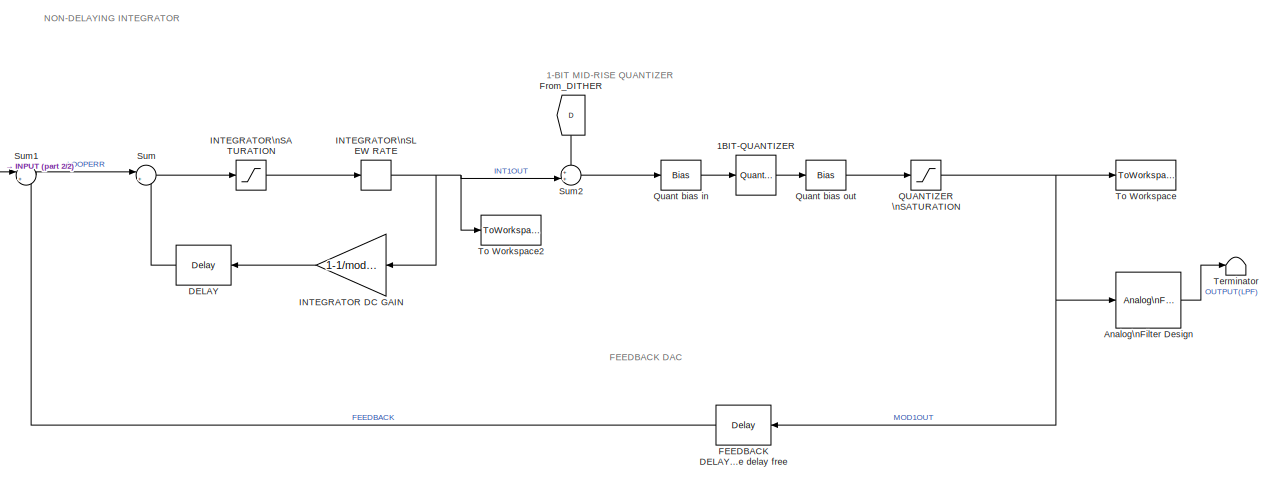
[diagram: root canvas - part 1/2, most of the canvas]
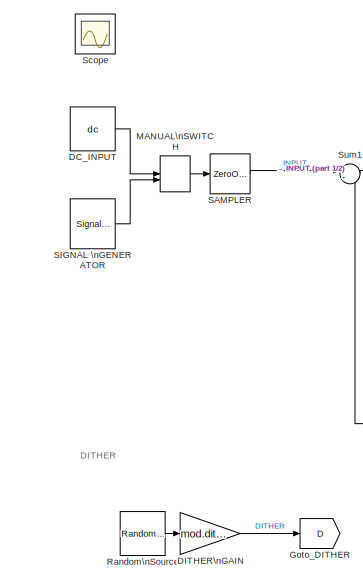
[diagram: root canvas - part 2/2, left side, full height]
MODEL mod1
KIND model
BLOCK [Quantizer] 1BIT-QUANTIZER
  AttributesFormatString = step = 2
  LinearizeAsGain = off
  QuantizationInterval = 2
  SID = 59
  SampleTime = 1/Fs
BLOCK [Reference] Analog\nFilter Design  REF=dsparch4/Analog\nFilter Design
  AttributesFormatString = Low-pass filter the loop output\\nto illustrate intuitively how the\\npulse density modulated +1/-1\\noutput stream does indeed capture\\nthe input signal
  N = 8
  Ports = [1, 1]
  Rp = 2
  Rs = 40
  SID = 19
  SourceBlock = dsparch4/Analog\nFilter Design
  SourceProductBaseCode = DS
  SourceProductName = DSP System Toolbox
  SourceType = Analog Filter Design
  Whi = 80
  Wlo = pi*(Fs/OSR)
  filttype = Lowpass
  method = Butterworth
BLOCK [Constant] DC_INPUT
  OutDataTypeStr = double
  SID = 56
  SampleTime = 1/Fs
  Value = dc
BLOCK [Delay] DELAY
  DelayLength = 1
  InitialCondition = 0
  InputPortMap = u0
  InputProcessing = Inherited
  Ports = [1, 1]
  SID = 39
  UserData = DataTag0
  UserDataPersistent = on
BLOCK [Gain] DITHER\nGAIN
  Gain = mod.dither
  OutDataTypeStr = Inherit: Inherit via internal rule
  ParamDataTypeStr = Inherit: Inherit via internal rule
  SID = 29
  SampleTime = 1/Fs
  SaturateOnIntegerOverflow = off
BLOCK [Delay] FEEDBACK DELAY\nNecessary to avoid a delay-free\nloop as integrator and\nquantizer are delay free
  DelayLength = 1
  InitialCondition = 0
  InputPortMap = u0
  InputProcessing = Inherited
  Ports = [1, 1]
  SID = 41
  UserData = DataTag1
  UserDataPersistent = on
BLOCK [From] From_DITHER
  GotoTag = D
  SID = 53
BLOCK [Goto] Goto_DITHER
  GotoTag = D
  SID = 52
BLOCK [Gain] INTEGRATOR DC GAIN
  AttributesFormatString = Integrator leakage\\n(model finite integrator dc/LF\\ngain in analog modulators)
  Gain = 1-1/mod.igain1
  OutDataTypeStr = Inherit: Inherit via internal rule
  ParamDataTypeStr = Inherit: Inherit via internal rule
  SID = 32
  SaturateOnIntegerOverflow = off
BLOCK [Saturate] INTEGRATOR\nSATURATION
  AttributesFormatString = Real integrators will have\\noutput swing limits (analog\\nsignal headroom or digital\\naccumulator min/max values)
  InputPortMap = u0
  LowerLimit = -(mod.isat1)
  Ports = [1, 1]
  SID = 36
  UpperLimit = mod.isat1
BLOCK [RateLimiter] INTEGRATOR\nSLEW RATE
  AttributesFormatString = ...and\\nmay suffer from\\npoor slew rate
  FallingSlewLimit = -(mod.isr1)
  RisingSlewLimit = mod.isr1
  SID = 84
  SampleTimeMode = inherited
BLOCK [ManualSwitch] MANUAL\nSWITCH
  AttributesFormatString = Double click to\\nselect the desired\\ninput
  SID = 74
BLOCK [Saturate] QUANTIZER \nSATURATION
  AttributesFormatString = Limit quantizer\\noutput
  InputPortMap = u0
  LowerLimit = -(mod.qsatout1)
  Ports = [1, 1]
  SID = 33
  UpperLimit = mod.qsatout1
BLOCK [Bias] Quant bias in
  AttributesFormatString = Need offset to give\\nMID-RISE quantiser
  Bias = 1
  SID = 57
  SaturateOnIntegerOverflow = off
BLOCK [Bias] Quant bias out
  AttributesFormatString = Shift outputs to\\n..., -2, 1, 1, ...
  Bias = -1
  SID = 58
  SaturateOnIntegerOverflow = off
BLOCK [Reference] Random\nSource  REF=dspsrcs4/Random\nSource
  CltLength = 12
  DataType = Double
  IsInherit = off
  MaxVal = 1
  MeanVal = 0
  MinVal = -1
  NormMethod = Ziggurat
  OutComplex = Real
  OutputFrames = on
  Ports = [0, 1]
  RepMode = Not repeatable
  SID = 25
  SampFrame = 1
  SampMode = Discrete
  SampTime = 1/Fs
  SourceBlock = dspsrcs4/Random\nSource
  SourceProductBaseCode = DS
  SourceProductName = DSP System Toolbox
  SourceType = Random Source
  SrcType = Uniform
  UserData = DataTag2
  UserDataPersistent = on
  VarVal = 1
  rawSeed = 1
BLOCK [ZeroOrderHold] SAMPLER
  SID = 87
  SampleTime = 1/Fs
BLOCK [SignalGenerator] SIGNAL \nGENERATOR
  Amplitude = sinamp
  Frequency = sinfreq
  Ports = [0, 1]
  SID = 86
  VectorParams1D = off
BLOCK [Scope] Scope
  IOType = viewer
  NumInputPorts = 1
  Ports = []
  SID = 75
  ScopeSpecificationString = C++SS(StrPVP('Location','[5, 49, 1367, 727]'),StrPVP('Open','off'),StrPVP('ZoomMode','yonly'),MxPVP('AxesTitles',53,'struct(''axes1'',''%<SignalLabel>'',''axes2'',''%<SignalLabel>'',''axes3'',''%<SignalLabel>'',''axes4'',''%<SignalLabel>'')'),StrPVP('ShowDataMarkers','off'),StrPVP('ShowLegends','off'),StrPVP('YMin','-5~-5~-5~-5'),StrPVP('YMax','5~5~5~5'),StrPVP('LimitDataPoints','off'),StrPVP('Max...<+139ch>
BLOCK [Sum] Sum
  AttributesFormatString = Integrator\\nsummer
  IconShape = round
  InputSameDT = off
  Inputs = |++
  OutDataTypeStr = Inherit: Inherit via internal rule
  Ports = [2, 1]
  SID = 3
  SaturateOnIntegerOverflow = off
BLOCK [Sum] Sum1
  AttributesFormatString = Modulator Input\\nLoop Error (input - fbk)
  IconShape = round
  InputSameDT = off
  Inputs = |+-
  OutDataTypeStr = Inherit: Inherit via internal rule
  Ports = [2, 1]
  SID = 7
  SampleTime = 1/Fs
  SaturateOnIntegerOverflow = off
BLOCK [Sum] Sum2
  IconShape = round
  InputSameDT = off
  Inputs = ++|
  OutDataTypeStr = Inherit: Inherit via internal rule
  Ports = [2, 1]
  SID = 30
  SaturateOnIntegerOverflow = off
BLOCK [Terminator] Terminator
  SID = 107
BLOCK [ToWorkspace] To Workspace
  AttributesFormatString = Export output to\\nworkspace for\\npost-processing
  MaxDataPoints = inf
  Ports = [1]
  SID = 31
  SampleTime = -1
  VariableName = mod_out
BLOCK [ToWorkspace] To Workspace2
  AttributesFormatString = Export output to\\nworkspace for\\npost-processing
  MaxDataPoints = inf
  Ports = [1]
  SID = 60
  SampleTime = -1
  VariableName = INT1OUT
ANNOTATION (root): DITHER \n\n\n\n\n\n
ANNOTATION (root): 1-BIT MID-RISE QUANTIZER \n\n\n\n\n\n\n\n
ANNOTATION (root): FEEDBACK DAC \n\n\n\n\n\n
ANNOTATION (root): NON-DELAYING INTEGRATOR \n\n\n\n\n\n\n\n\n\n\n\n\n\n \n
LINE 1BIT-QUANTIZER:1 -> Quant bias out:1
LINE Analog\nFilter Design:1 -> Terminator:1
LINE DC_INPUT:1 -> MANUAL\nSWITCH:1
LINE DELAY:1 -> Sum:2
LINE DITHER\nGAIN:1 -> Goto_DITHER:1
LINE FEEDBACK DELAY\nNecessary to avoid a delay-free\nloop as integrator and\nquantizer are delay free:1 -> Sum1:2
LINE From_DITHER:1 -> Sum2:1
LINE INTEGRATOR DC GAIN:1 -> DELAY:1
LINE INTEGRATOR\nSATURATION:1 -> INTEGRATOR\nSLEW RATE:1
NET INTEGRATOR\nSLEW RATE:1 -> INTEGRATOR DC GAIN:1, Sum2:2, To Workspace2:1
LINE MANUAL\nSWITCH:1 -> SAMPLER:1
NET QUANTIZER \nSATURATION:1 -> Analog\nFilter Design:1, FEEDBACK DELAY\nNecessary to avoid a delay-free\nloop as integrator and\nquantizer are delay free:1, To Workspace:1
LINE Quant bias in:1 -> 1BIT-QUANTIZER:1
LINE Quant bias out:1 -> QUANTIZER \nSATURATION:1
LINE Random\nSource:1 -> DITHER\nGAIN:1
LINE SAMPLER:1 -> Sum1:1
LINE SIGNAL \nGENERATOR:1 -> MANUAL\nSWITCH:2
LINE Sum1:1 -> Sum:1
LINE Sum2:1 -> Quant bias in:1
LINE Sum:1 -> INTEGRATOR\nSATURATION:1
note: NET lines group one-source signal fan-out (src -> all destinations, sorted); 1:1 wires keep LINE
